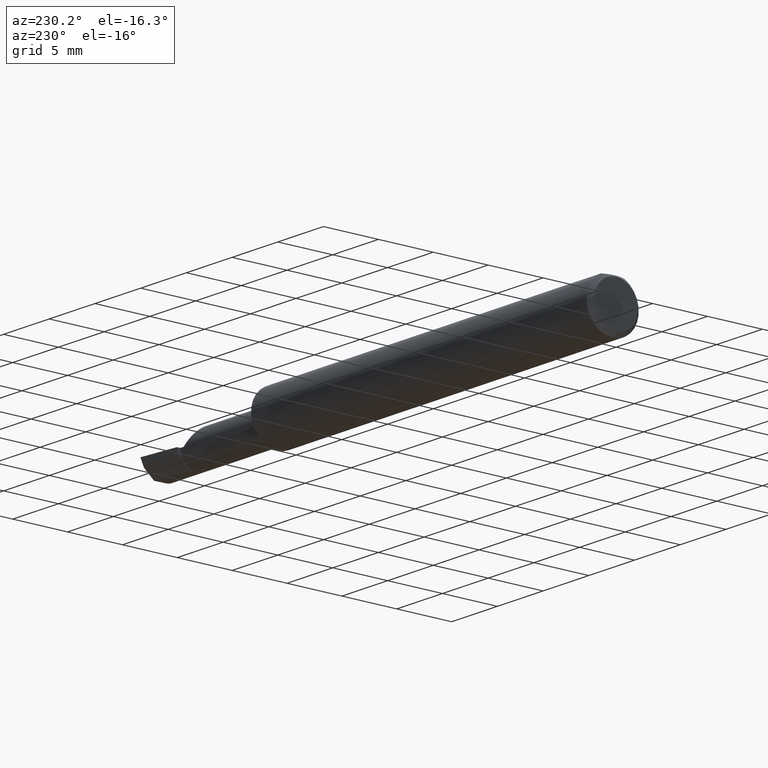
[diagram: clean part render]
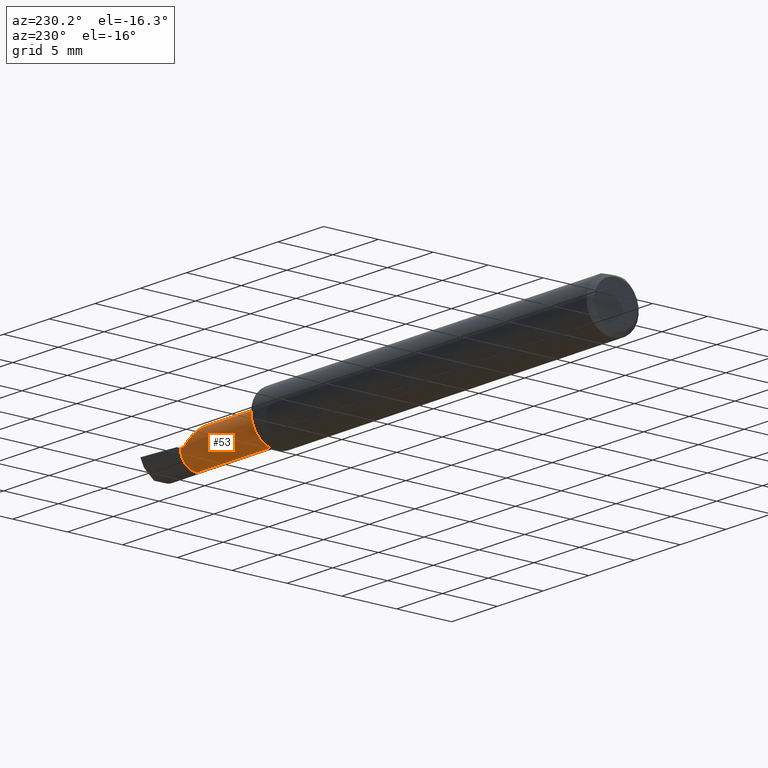
[diagram: same view with one face highlighted and labeled with its STEP entity id]
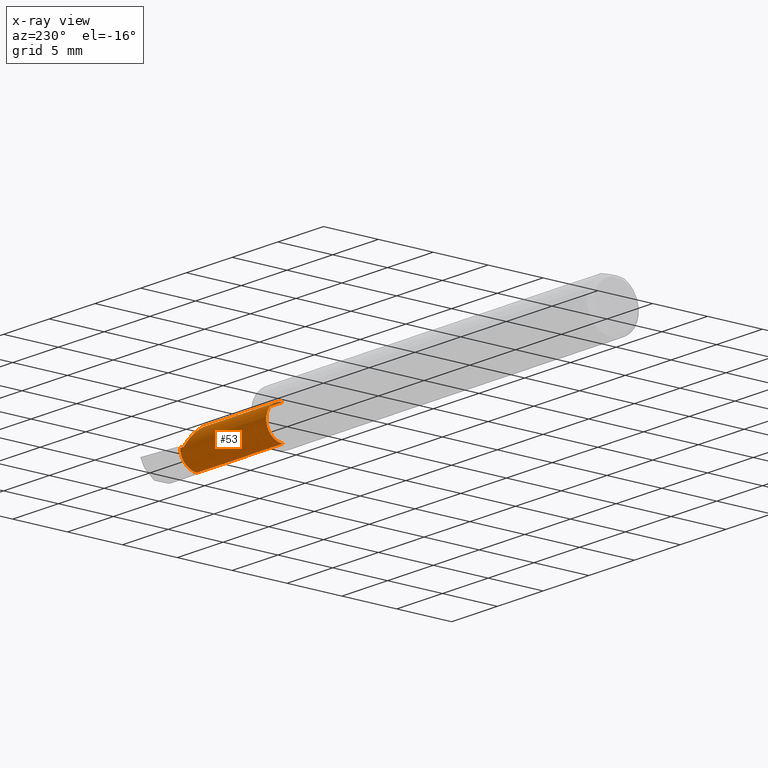
[diagram: x-ray of the same camera — body ghosted, the highlighted face saturated]
A machine part, auxiliary view. The second image highlights one B-rep face of the part: STEP entity #53.
The next image is the same camera in x-ray: the body ghosted, the highlighted face saturated — about 0% of this face is hidden behind the body in this view.
In plain terms, the highlighted cylindrical surface (edge-blend (fillet) strip) has radius 1.5215 mm, axis along (-1, -0, -0).
Its self-contained STEP definition (entity closure, byte-faithful):
#17 = CARTESIAN_POINT ( 'NONE',  ( 1.840000000000000080, 0.01839999999999989908, 1.959434878635762025E-17 ) ) ;
#35 = AXIS2_PLACEMENT_3D ( 'NONE', #718, #236, #447 ) ;
#37 = DIRECTION ( 'NONE',  ( -1.000000000000000000, -0.0000000000000000000, -0.0000000000000000000 ) ) ;
#41 = CARTESIAN_POINT ( 'NONE',  ( 0.0000000000000000000, -0.04150000000000000216, 0.0000000000000000000 ) ) ;
#53 = ADVANCED_FACE ( 'NONE', ( #666 ), #246, .T. ) ;
#79 = EDGE_CURVE ( 'NONE', #565, #226, #490, .T. ) ;
#95 = CIRCLE ( 'NONE', #728, 0.05989999999999995328 ) ;
#128 = ORIENTED_EDGE ( 'NONE', *, *, #602, .T. ) ;
#143 = VECTOR ( 'NONE', #177, 39.37007874015748143 ) ;
#147 = EDGE_CURVE ( 'NONE', #411, #570, #659, .T. ) ;
#150 = CIRCLE ( 'NONE', #35, 0.05990000000000000185 ) ;
#177 = DIRECTION ( 'NONE',  ( -1.000000000000000000, -0.0000000000000000000, -0.0000000000000000000 ) ) ;
#184 = CARTESIAN_POINT ( 'NONE',  ( 1.484999999999999876, -0.04149999999999999523, 0.05989999999999996022 ) ) ;
#217 = EDGE_LOOP ( 'NONE', ( #128, #467, #459, #598, #265, #660 ) ) ;
#223 = CARTESIAN_POINT ( 'NONE',  ( 1.780099999999999349, -0.04150000000000000216, 0.05989999999999998104 ) ) ;
#226 = VERTEX_POINT ( 'NONE', #184 ) ;
#230 = CARTESIAN_POINT ( 'NONE',  ( 1.484999999999999876, -0.04149999999999998829, -0.05989999999999996022 ) ) ;
#236 = DIRECTION ( 'NONE',  ( -1.000000000000000000, -0.0000000000000000000, -0.0000000000000000000 ) ) ;
#246 = CYLINDRICAL_SURFACE ( 'NONE', #551, 0.05989999999999998104 ) ;
#253 =( BOUNDED_CURVE ( )  B_SPLINE_CURVE ( 3, ( #223, #715, #518, #17 ),
 .UNSPECIFIED., .F., .F. ) 
 B_SPLINE_CURVE_WITH_KNOTS ( ( 4, 4 ),
 ( 0.0000000000000000000, 1.570796326794896558 ),
 .UNSPECIFIED. ) 
 CURVE ( )  GEOMETRIC_REPRESENTATION_ITEM ( )  RATIONAL_B_SPLINE_CURVE ( ( 1.000000000000000000, 0.8047378541243649375, 0.8047378541243649375, 1.000000000000000000 ) ) 
 REPRESENTATION_ITEM ( '' )  );
#265 = ORIENTED_EDGE ( 'NONE', *, *, #595, .T. ) ;
#275 = VECTOR ( 'NONE', #581, 39.37007874015748143 ) ;
#277 = VERTEX_POINT ( 'NONE', #341 ) ;
#283 = CARTESIAN_POINT ( 'NONE',  ( 1.854999999999999982, 0.01840000000000001010, 1.030335658007946637E-15 ) ) ;
#298 = CARTESIAN_POINT ( 'NONE',  ( 1.854999999999999982, -0.04150000000000000216, -0.05990000000000000185 ) ) ;
#341 = CARTESIAN_POINT ( 'NONE',  ( 1.840000000000000080, 0.01839999999999989908, 1.959434878635762025E-17 ) ) ;
#401 = CARTESIAN_POINT ( 'NONE',  ( 5.659797890829555466E-31, 0.01839999999999996499, 1.030335658007946046E-15 ) ) ;
#411 = VERTEX_POINT ( 'NONE', #298 ) ;
#427 = VERTEX_POINT ( 'NONE', #283 ) ;
#439 = CARTESIAN_POINT ( 'NONE',  ( 0.0000000000000000000, -0.04150000000000000216, 0.05989999999999998104 ) ) ;
#447 = DIRECTION ( 'NONE',  ( 0.0000000000000000000, 0.0000000000000000000, 1.000000000000000000 ) ) ;
#459 = ORIENTED_EDGE ( 'NONE', *, *, #633, .F. ) ;
#467 = ORIENTED_EDGE ( 'NONE', *, *, #147, .T. ) ;
#490 = LINE ( 'NONE', #439, #143 ) ;
#518 = CARTESIAN_POINT ( 'NONE',  ( 1.804911392386147506, 0.01839999999999997540, 0.03508860761385160232 ) ) ;
#522 = LINE ( 'NONE', #401, #548 ) ;
#548 = VECTOR ( 'NONE', #552, 39.37007874015748143 ) ;
#549 = EDGE_CURVE ( 'NONE', #277, #427, #522, .T. ) ;
#551 = AXIS2_PLACEMENT_3D ( 'NONE', #41, #649, #576 ) ;
#552 = DIRECTION ( 'NONE',  ( 1.000000000000000000, 0.0000000000000000000, 0.0000000000000000000 ) ) ;
#565 = VERTEX_POINT ( 'NONE', #645 ) ;
#567 = DIRECTION ( 'NONE',  ( 0.0000000000000000000, 0.0000000000000000000, 1.000000000000000000 ) ) ;
#570 = VERTEX_POINT ( 'NONE', #230 ) ;
#576 = DIRECTION ( 'NONE',  ( 0.0000000000000000000, 0.0000000000000000000, 1.000000000000000000 ) ) ;
#581 = DIRECTION ( 'NONE',  ( -1.000000000000000000, -0.0000000000000000000, -0.0000000000000000000 ) ) ;
#595 = EDGE_CURVE ( 'NONE', #565, #277, #253, .T. ) ;
#598 = ORIENTED_EDGE ( 'NONE', *, *, #79, .F. ) ;
#602 = EDGE_CURVE ( 'NONE', #427, #411, #150, .T. ) ;
#620 = CARTESIAN_POINT ( 'NONE',  ( 0.0000000000000000000, -0.04149999999999999523, -0.05989999999999998104 ) ) ;
#633 = EDGE_CURVE ( 'NONE', #226, #570, #95, .T. ) ;
#645 = CARTESIAN_POINT ( 'NONE',  ( 1.780099999999999349, -0.04150000000000000216, 0.05989999999999998104 ) ) ;
#649 = DIRECTION ( 'NONE',  ( -1.000000000000000000, -0.0000000000000000000, -0.0000000000000000000 ) ) ;
#659 = LINE ( 'NONE', #620, #275 ) ;
#660 = ORIENTED_EDGE ( 'NONE', *, *, #549, .T. ) ;
#666 = FACE_OUTER_BOUND ( 'NONE', #217, .T. ) ;
#680 = CARTESIAN_POINT ( 'NONE',  ( 1.484999999999999876, -0.04150000000000000216, 0.0000000000000000000 ) ) ;
#715 = CARTESIAN_POINT ( 'NONE',  ( 1.780099999999999349, -0.006411392386148408520, 0.05989999999999998104 ) ) ;
#718 = CARTESIAN_POINT ( 'NONE',  ( 1.854999999999999982, -0.04150000000000000216, 0.0000000000000000000 ) ) ;
#728 = AXIS2_PLACEMENT_3D ( 'NONE', #680, #37, #567 ) ;